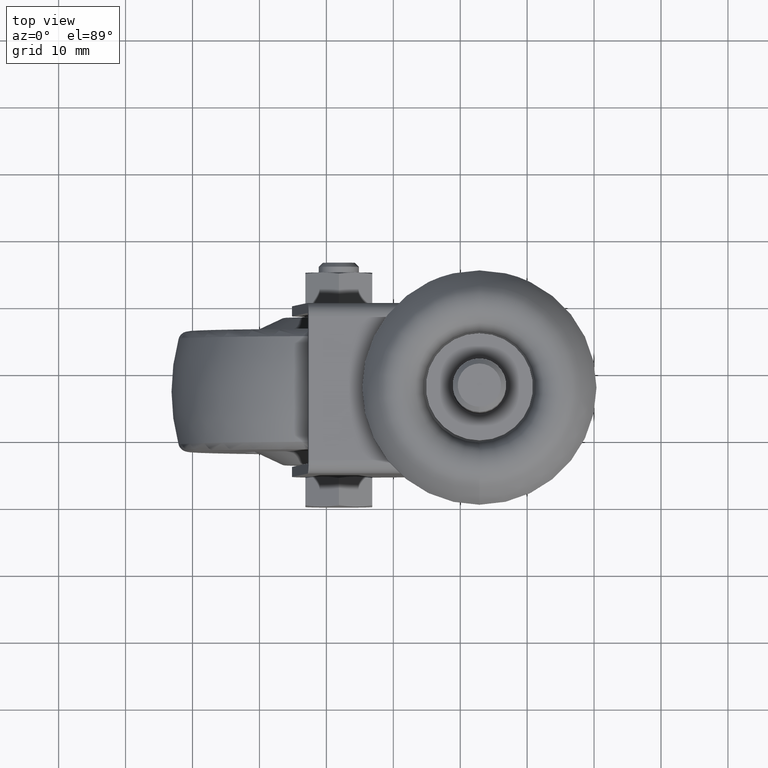
[diagram: clean part render]
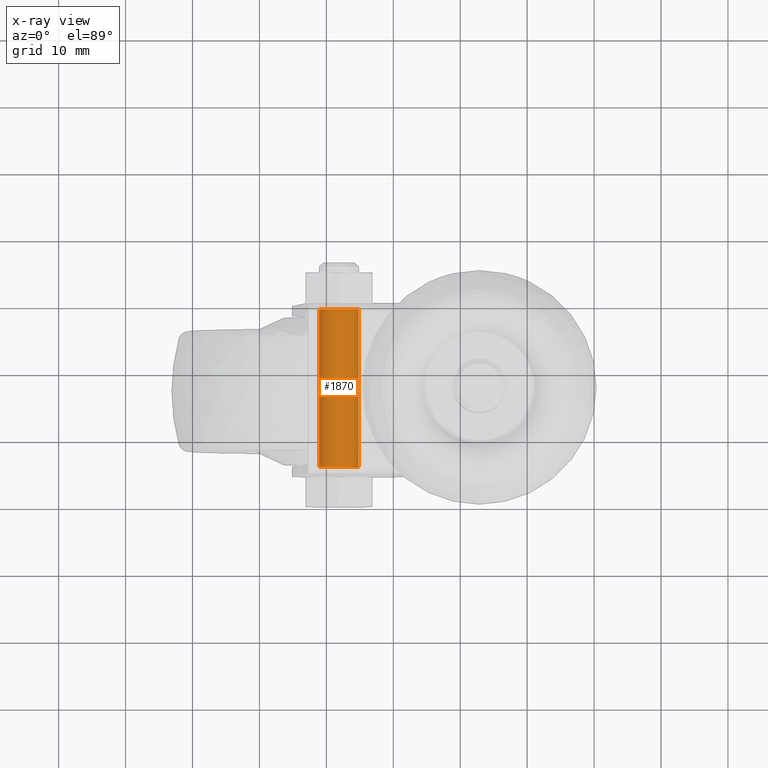
[diagram: x-ray — body ghosted, one internal face saturated and labeled with its STEP entity id]
A machine part, top view, then the same camera in x-ray: the body is ghosted and one INTERNAL B-rep face — a face not visible from any outside direction — is saturated and labeled: STEP entity #1870.
In plain terms, the highlighted cylindrical surface (bore or boss wall) has radius 2.95 mm, axis along (-0, 1, 0).
Its self-contained STEP definition (entity closure, byte-faithful):
#123=LINE('',#3205,#193);
#193=VECTOR('',#2531,2.95);
#263=CYLINDRICAL_SURFACE('',#2215,2.95);
#372=FACE_OUTER_BOUND('',#507,.T.);
#507=EDGE_LOOP('',(#1313,#1314,#1315,#1316));
#663=CIRCLE('',#2214,2.95);
#664=CIRCLE('',#2216,2.95);
#855=VERTEX_POINT('',#3200);
#856=VERTEX_POINT('',#3203);
#1028=EDGE_CURVE('',#855,#855,#663,.T.);
#1029=EDGE_CURVE('',#856,#856,#664,.T.);
#1030=EDGE_CURVE('',#856,#855,#123,.T.);
#1313=ORIENTED_EDGE('',*,*,#1029,.F.);
#1314=ORIENTED_EDGE('',*,*,#1030,.T.);
#1315=ORIENTED_EDGE('',*,*,#1028,.T.);
#1316=ORIENTED_EDGE('',*,*,#1030,.F.);
#1870=ADVANCED_FACE('',(#372),#263,.T.);
#2214=AXIS2_PLACEMENT_3D('',#3201,#2525,#2526);
#2215=AXIS2_PLACEMENT_3D('',#3202,#2527,#2528);
#2216=AXIS2_PLACEMENT_3D('',#3204,#2529,#2530);
#2525=DIRECTION('center_axis',(1.,0.,0.));
#2526=DIRECTION('ref_axis',(0.,0.,-1.));
#2527=DIRECTION('center_axis',(1.,0.,0.));
#2528=DIRECTION('ref_axis',(0.,0.,-1.));
#2529=DIRECTION('center_axis',(1.,0.,0.));
#2530=DIRECTION('ref_axis',(0.,0.,-1.));
#2531=DIRECTION('',(-1.,0.,0.));
#3200=CARTESIAN_POINT('',(0.,-3.61270805748469E-16,2.95));
#3201=CARTESIAN_POINT('Origin',(0.,0.,0.));
#3202=CARTESIAN_POINT('Origin',(30.5,0.,0.));
#3203=CARTESIAN_POINT('',(23.5,-3.61270805748469E-16,2.95));
#3204=CARTESIAN_POINT('Origin',(23.5,0.,0.));
#3205=CARTESIAN_POINT('',(30.5,-3.61270805748469E-16,2.95));